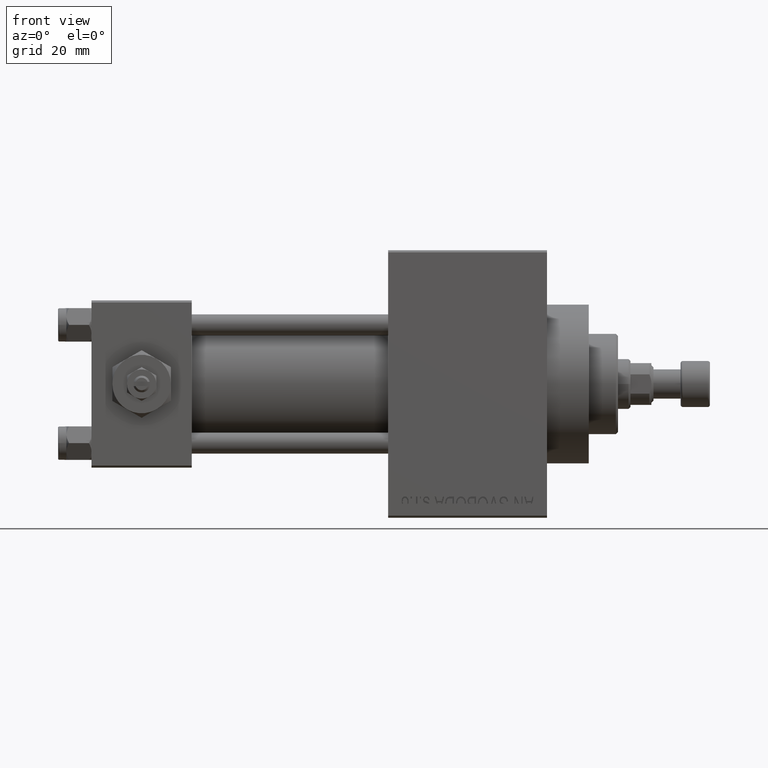
[diagram: clean part render]
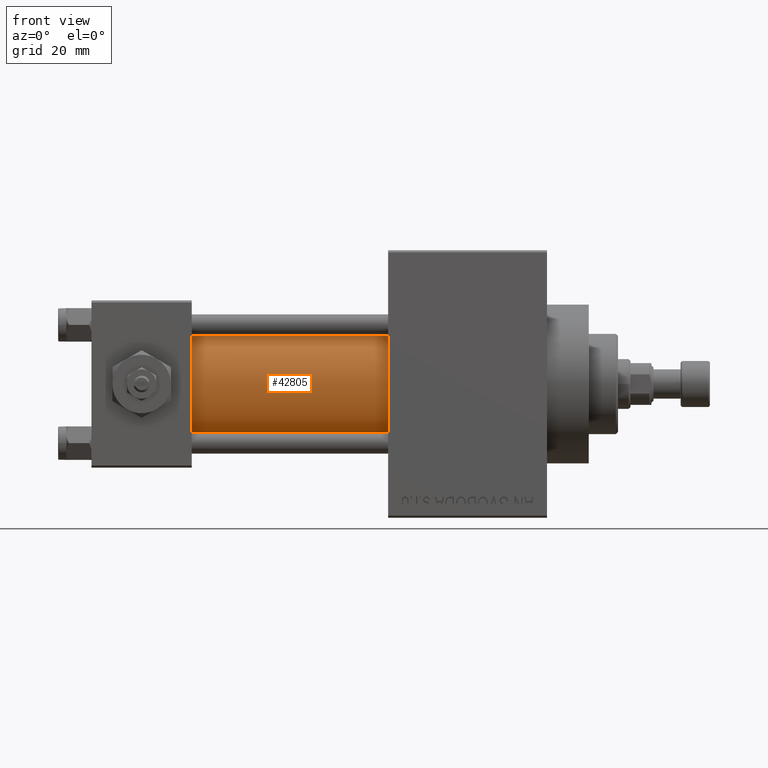
[diagram: same view with one face highlighted and labeled with its STEP entity id]
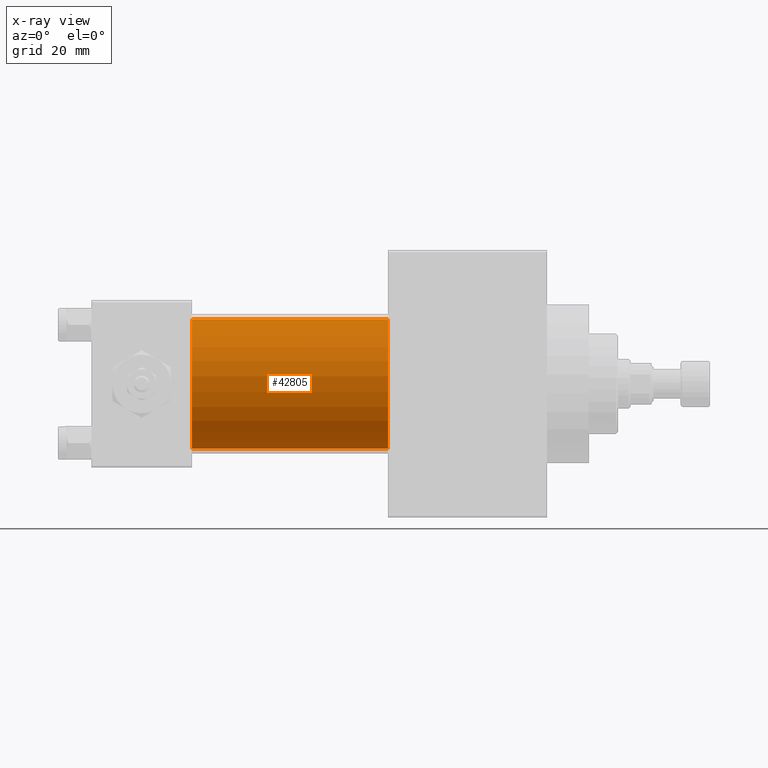
[diagram: x-ray of the same camera — body ghosted, the highlighted face saturated]
A machine part, front view. The second image highlights one B-rep face of the part: STEP entity #42805.
The next image is the same camera in x-ray: the body ghosted, the highlighted face saturated — about 0% of this face is hidden behind the body in this view.
In plain terms, the highlighted cylindrical surface (partial cylindrical patch) has radius 15.5 mm, axis along (-1, -0, -0).
Its self-contained STEP definition (entity closure, byte-faithful):
#3146 = ORIENTED_EDGE ( 'NONE', *, *, #30726, .T. ) ;
#3283 = DIRECTION ( 'NONE',  ( 1.000000000000000000, 0.000000000000000000, 0.000000000000000000 ) ) ;
#3769 = CARTESIAN_POINT ( 'NONE',  ( 71.00000000000001421, -2.602085213965210642E-15, 0.000000000000000000 ) ) ;
#5108 = CIRCLE ( 'NONE', #9108, 15.50000000000000000 ) ;
#5456 = DIRECTION ( 'NONE',  ( -1.000000000000000000, -0.000000000000000000, -0.000000000000000000 ) ) ;
#5980 = EDGE_LOOP ( 'NONE', ( #12774, #24355, #3146, #28573 ) ) ;
#7026 = CYLINDRICAL_SURFACE ( 'NONE', #24647, 15.50000000000000000 ) ;
#7954 = DIRECTION ( 'NONE',  ( 1.000000000000000000, 0.000000000000000000, 0.000000000000000000 ) ) ;
#9108 = AXIS2_PLACEMENT_3D ( 'NONE', #14049, #3283, #21793 ) ;
#9493 = VERTEX_POINT ( 'NONE', #22824 ) ;
#12774 = ORIENTED_EDGE ( 'NONE', *, *, #18805, .F. ) ;
#14049 = CARTESIAN_POINT ( 'NONE',  ( 24.00000000000000000, -2.602085213965210642E-15, 0.000000000000000000 ) ) ;
#14776 = FACE_OUTER_BOUND ( 'NONE', #5980, .T. ) ;
#14859 = AXIS2_PLACEMENT_3D ( 'NONE', #35152, #7954, #19694 ) ;
#16959 = LINE ( 'NONE', #43429, #39481 ) ;
#18805 = EDGE_CURVE ( 'NONE', #27601, #38877, #16959, .T. ) ;
#19016 = DIRECTION ( 'NONE',  ( 0.000000000000000000, 0.000000000000000000, 1.000000000000000000 ) ) ;
#19694 = DIRECTION ( 'NONE',  ( 0.000000000000000000, 0.000000000000000000, -1.000000000000000000 ) ) ;
#21793 = DIRECTION ( 'NONE',  ( 0.000000000000000000, 0.000000000000000000, 1.000000000000000000 ) ) ;
#22519 = DIRECTION ( 'NONE',  ( -1.000000000000000000, -0.000000000000000000, -0.000000000000000000 ) ) ;
#22671 = LINE ( 'NONE', #34624, #45098 ) ;
#22824 = CARTESIAN_POINT ( 'NONE',  ( 24.00000000000000000, -2.602085213965210642E-15, 15.50000000000000000 ) ) ;
#24255 = EDGE_CURVE ( 'NONE', #37591, #27601, #49181, .T. ) ;
#24355 = ORIENTED_EDGE ( 'NONE', *, *, #24255, .F. ) ;
#24647 = AXIS2_PLACEMENT_3D ( 'NONE', #3769, #22519, #19016 ) ;
#26004 = CARTESIAN_POINT ( 'NONE',  ( 71.00000000000001421, -7.038826752868131828E-16, -15.50000000000000000 ) ) ;
#27601 = VERTEX_POINT ( 'NONE', #26004 ) ;
#28238 = CARTESIAN_POINT ( 'NONE',  ( 71.00000000000001421, -2.602085213965210642E-15, 15.50000000000000000 ) ) ;
#28573 = ORIENTED_EDGE ( 'NONE', *, *, #28934, .T. ) ;
#28934 = EDGE_CURVE ( 'NONE', #9493, #38877, #5108, .T. ) ;
#30726 = EDGE_CURVE ( 'NONE', #37591, #9493, #22671, .T. ) ;
#32856 = CARTESIAN_POINT ( 'NONE',  ( 24.00000000000000000, -7.038826752868131828E-16, -15.50000000000000000 ) ) ;
#34624 = CARTESIAN_POINT ( 'NONE',  ( 71.00000000000001421, -2.602085213965210642E-15, 15.50000000000000000 ) ) ;
#35152 = CARTESIAN_POINT ( 'NONE',  ( 71.00000000000001421, -2.602085213965210642E-15, 0.000000000000000000 ) ) ;
#37591 = VERTEX_POINT ( 'NONE', #28238 ) ;
#38877 = VERTEX_POINT ( 'NONE', #32856 ) ;
#39481 = VECTOR ( 'NONE', #5456, 1000.000000000000000 ) ;
#42384 = DIRECTION ( 'NONE',  ( -1.000000000000000000, -0.000000000000000000, -0.000000000000000000 ) ) ;
#42805 = ADVANCED_FACE ( 'NONE', ( #14776 ), #7026, .T. ) ;
#43429 = CARTESIAN_POINT ( 'NONE',  ( 71.00000000000001421, -7.038826752868131828E-16, -15.50000000000000000 ) ) ;
#45098 = VECTOR ( 'NONE', #42384, 1000.000000000000000 ) ;
#49181 = CIRCLE ( 'NONE', #14859, 15.50000000000000000 ) ;